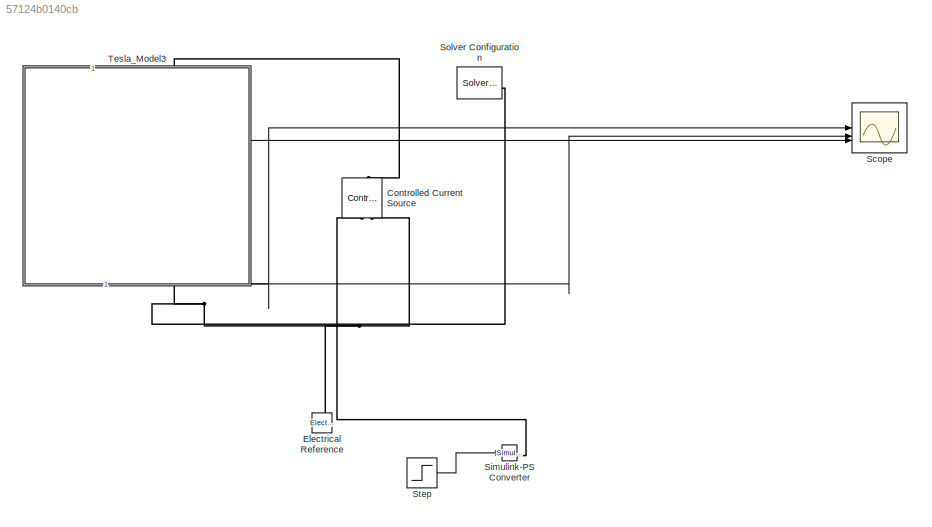
MODEL slx_57124b0140cb
KIND model
CONFIG AbsTol = auto
CONFIG EnableMultiTasking = off
CONFIG FixedStep = auto
CONFIG MaxStep = auto
CONFIG MinStep = auto
CONFIG RelTol = 1e-3
CONFIG SampleTimeConstraint = Unconstrained
CONFIG SolverName = VariableStepAuto
CONFIG StartTime = 0.0
CONFIG StopTime = 1200
BLOCK [Reference] Controlled Current Source  REF=fl_lib/Electrical/Electrical Sources/Controlled Current
Source
  NameLocation = right
  SourceBlock = fl_lib/Electrical/Electrical Sources/Controlled Current\nSource
  SourceType = Controlled Current\nSource
BLOCK [Reference] Electrical Reference  REF=fl_lib/Electrical/Electrical Elements/Electrical Reference
  NameLocation = right
  SourceBlock = fl_lib/Electrical/Electrical Elements/Electrical Reference
  SourceType = Electrical Reference
BLOCK [Scope] Scope
  ActiveDisplayYMaximum = 5.2166927086191768
  ActiveDisplayYMinimum = -4.890394675890005
  Floating = off
  GraphicalSettings = {"AxesScalingProperties":{"AlignXAxis":"Center","AlignYAxis":"Center","AutoScaleXAxisLimits":false,"AxesScaling":"Manual","AxesScalingNumUpdates":10,"ExpandOnly":true,"ScaleAxesLimitsAtStop":false,"XAxisDataRange":100,"YAxisDataRange":80},"DisplayProperties":{"ColorOrder":["auto","auto","auto","auto","auto","auto","auto","auto","auto","auto","auto","auto","auto","auto","auto","auto","auto","auto",...<+2320ch>
  MultipleDisplayCache = [{"MaxYLimMag":1.2031611983883417,"MaxYLimReal":5.2166927086191768,"MinYLimMag":0.75800658344392424,"MinYLimReal":-4.890394675890005,"PlotAsMagnitudePhase":false,"ShowGrid":true,"ShowLegend":true,"Title":"%<SignalLabel>","YLabel":""}]
  NumInputPorts = 3
  ScopeFrameLocation = window
  ShowLegend = on
  WasSavedAsWebScope = on
  WindowPosition = [61.000000,273.000000,762.000000,386.000000,]
BLOCK [Reference] Simulink-PS Converter  REF=nesl_utility/Simulink-PS
Converter
  SourceBlock = nesl_utility/Simulink-PS\nConverter
  SourceType = Simulink-PS\nConverter
BLOCK [Reference] Solver Configuration  REF=nesl_utility/Solver
Configuration
  SourceBlock = nesl_utility/Solver\nConfiguration
  SourceType = Solver\nConfiguration
BLOCK [Step] Step
  After = -200
  SampleTime = 0
  Time = 10
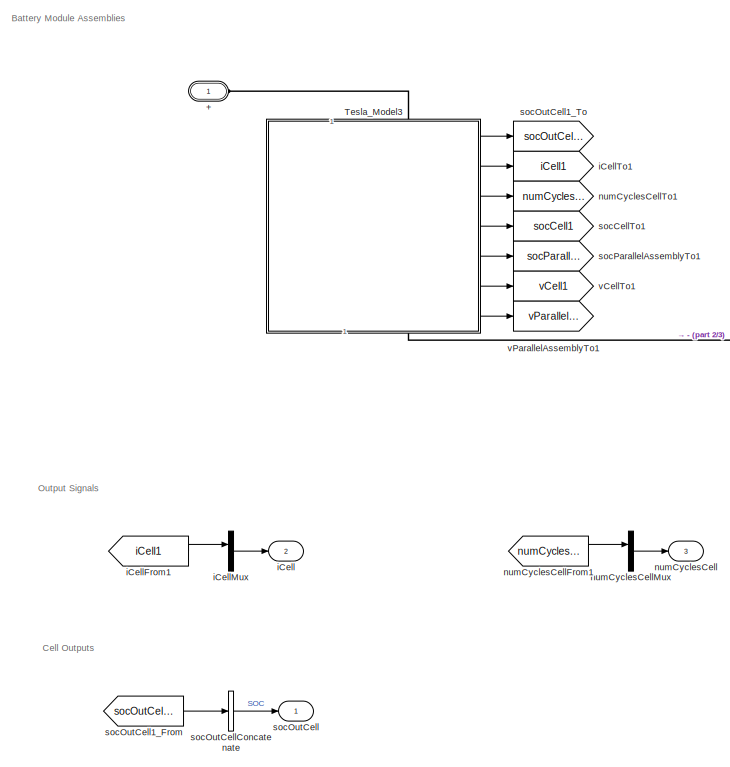
[diagram: Tesla_Model3 - part 1/3, left side, full height]
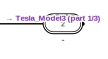
[diagram: Tesla_Model3 - part 2/3, top right region]
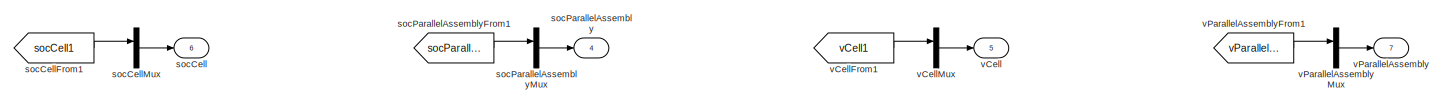
[diagram: Tesla_Model3 - part 3/3, bottom right region]
BLOCK [SubSystem] Tesla_Model3
  CopyFcn = battery_builder_rtmsupport('copyfcn',gcbh);
  LoadFcn = battery_builder_rtmsupport('loadfcn',gcbh);
  PortSchema = {"entries":[{"content":{"sides":[{"content":{"connectorIds":["LConn1"]},"type":"ConnectorPlacement.EquallySpacedRectSide","uuid":"f4af4d11-4926-44c4-af59-311caea6cabd"},{"content":{"connectorIds":["RConn1"],"side":"RIGHT"},"type":"ConnectorPlacement.EquallySpacedRectSide","uuid":"c841043f-6c5b-4fcc-b172-6d8728c652f5"},{"content":{"side":"TOP"},"type":"ConnectorPlacement.EquallySpacedRectSide","uui...<+419ch>
  PreCopyFcn = battery_builder_rtmsupport('precopyfcn',gcbh);
  PreDeleteFcn = battery_builder_rtmsupport('predeletefcn',gcbh);
BLOCK [PMIOPort] Tesla_Model3/+
  Side = Left
BLOCK [PMIOPort] Tesla_Model3/-
  Port = 2
  Side = Right
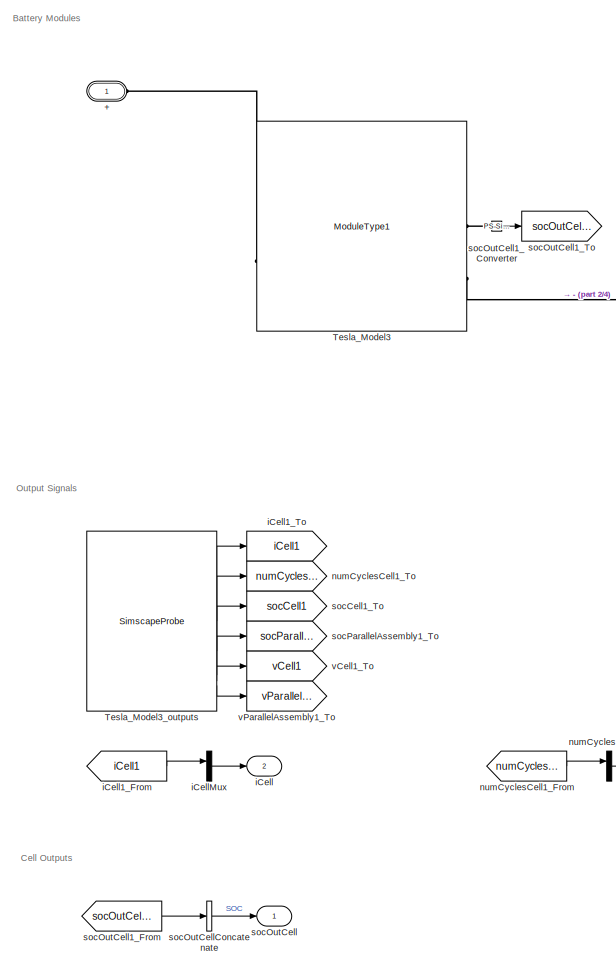
[diagram: Tesla_Model3/Tesla_Model3 - part 1/4, left side, full height]
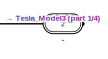
[diagram: Tesla_Model3/Tesla_Model3 - part 2/4, top right region]
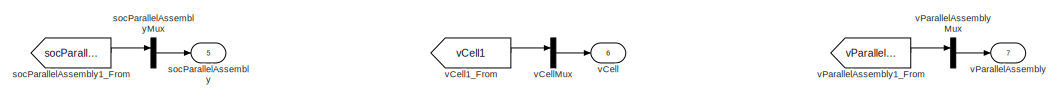
[diagram: Tesla_Model3/Tesla_Model3 - part 3/4, bottom right region]
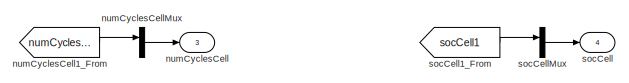
[diagram: Tesla_Model3/Tesla_Model3 - part 4/4, bottom center region]
BLOCK [SubSystem] Tesla_Model3/Tesla_Model3
  CopyFcn = battery_builder_rtmsupport('copyfcn',gcbh);
  LoadFcn = battery_builder_rtmsupport('loadfcn',gcbh);
  PortSchema = {"entries":[{"content":{"sides":[{"content":{"connectorIds":["LConn1"]},"type":"ConnectorPlacement.EquallySpacedRectSide","uuid":"f4af4d11-4926-44c4-af59-311caea6cabd"},{"content":{"connectorIds":["RConn1"],"side":"RIGHT"},"type":"ConnectorPlacement.EquallySpacedRectSide","uuid":"c841043f-6c5b-4fcc-b172-6d8728c652f5"},{"content":{"side":"TOP"},"type":"ConnectorPlacement.EquallySpacedRectSide","uui...<+419ch>
  PreCopyFcn = battery_builder_rtmsupport('precopyfcn',gcbh);
  PreDeleteFcn = battery_builder_rtmsupport('predeletefcn',gcbh);
BLOCK [PMIOPort] Tesla_Model3/Tesla_Model3/+
  Side = Left
BLOCK [PMIOPort] Tesla_Model3/Tesla_Model3/-
  Port = 2
  Side = Right
BLOCK [Reference] Tesla_Model3/Tesla_Model3/Tesla_Model3  REF=Batteries_lib/Modules/ModuleType1
  SourceBlock = Batteries_lib/Modules/ModuleType1
  SourceType = ModuleType1
BLOCK [SimscapeProbe] Tesla_Model3/Tesla_Model3/Tesla_Model3_outputs
  BoundBlock = 3
  Variables = {"iCell":{"Probing":"ON"},"numCyclesCell":{"Probing":"ON"},"socCell":{"Probing":"ON"},"socParallelAssembly":{"Probing":"ON"},"vCell":{"Probing":"ON"},"vParallelAssembly":{"Probing":"ON"}}
BLOCK [Outport] Tesla_Model3/Tesla_Model3/iCell
  Port = 2
BLOCK [From] Tesla_Model3/Tesla_Model3/iCell1_From
  GotoTag = iCell1
BLOCK [Goto] Tesla_Model3/Tesla_Model3/iCell1_To
  GotoTag = iCell1
BLOCK [Mux] Tesla_Model3/Tesla_Model3/iCellMux
  DisplayOption = bar
  Inputs = 1
BLOCK [Outport] Tesla_Model3/Tesla_Model3/numCyclesCell
  Port = 3
BLOCK [From] Tesla_Model3/Tesla_Model3/numCyclesCell1_From
  GotoTag = numCyclesCell1
BLOCK [Goto] Tesla_Model3/Tesla_Model3/numCyclesCell1_To
  GotoTag = numCyclesCell1
BLOCK [Mux] Tesla_Model3/Tesla_Model3/numCyclesCellMux
  DisplayOption = bar
  Inputs = 1
BLOCK [Outport] Tesla_Model3/Tesla_Model3/socCell
  Port = 4
BLOCK [From] Tesla_Model3/Tesla_Model3/socCell1_From
  GotoTag = socCell1
BLOCK [Goto] Tesla_Model3/Tesla_Model3/socCell1_To
  GotoTag = socCell1
BLOCK [Mux] Tesla_Model3/Tesla_Model3/socCellMux
  DisplayOption = bar
  Inputs = 1
BLOCK [Outport] Tesla_Model3/Tesla_Model3/socOutCell
  IconDisplay = Signal name
BLOCK [Reference] Tesla_Model3/Tesla_Model3/socOutCell1_Converter  REF=nesl_utility/PS-Simulink
Converter
  SourceBlock = nesl_utility/PS-Simulink\nConverter
  SourceType = PS-Simulink\nConverter
BLOCK [From] Tesla_Model3/Tesla_Model3/socOutCell1_From
  GotoTag = socOutCell1
BLOCK [Goto] Tesla_Model3/Tesla_Model3/socOutCell1_To
  GotoTag = socOutCell1
BLOCK [Concatenate] Tesla_Model3/Tesla_Model3/socOutCellConcatenate
  ConcatenateDimension = 2
  Mode = Multidimensional array
  NumInputs = 1
BLOCK [Outport] Tesla_Model3/Tesla_Model3/socParallelAssembly
  Port = 5
BLOCK [From] Tesla_Model3/Tesla_Model3/socParallelAssembly1_From
  GotoTag = socParallelAssembly1
BLOCK [Goto] Tesla_Model3/Tesla_Model3/socParallelAssembly1_To
  GotoTag = socParallelAssembly1
BLOCK [Mux] Tesla_Model3/Tesla_Model3/socParallelAssemblyMux
  DisplayOption = bar
  Inputs = 1
BLOCK [Outport] Tesla_Model3/Tesla_Model3/vCell
  Port = 6
BLOCK [From] Tesla_Model3/Tesla_Model3/vCell1_From
  GotoTag = vCell1
BLOCK [Goto] Tesla_Model3/Tesla_Model3/vCell1_To
  GotoTag = vCell1
BLOCK [Mux] Tesla_Model3/Tesla_Model3/vCellMux
  DisplayOption = bar
  Inputs = 1
BLOCK [Outport] Tesla_Model3/Tesla_Model3/vParallelAssembly
  Port = 7
BLOCK [From] Tesla_Model3/Tesla_Model3/vParallelAssembly1_From
  GotoTag = vParallelAssembly1
BLOCK [Goto] Tesla_Model3/Tesla_Model3/vParallelAssembly1_To
  GotoTag = vParallelAssembly1
BLOCK [Mux] Tesla_Model3/Tesla_Model3/vParallelAssemblyMux
  DisplayOption = bar
  Inputs = 1
BLOCK [Outport] Tesla_Model3/iCell
  Port = 2
BLOCK [From] Tesla_Model3/iCellFrom1
  GotoTag = iCell1
BLOCK [Mux] Tesla_Model3/iCellMux
  DisplayOption = bar
  Inputs = 1
BLOCK [Goto] Tesla_Model3/iCellTo1
  GotoTag = iCell1
BLOCK [Outport] Tesla_Model3/numCyclesCell
  Port = 3
BLOCK [From] Tesla_Model3/numCyclesCellFrom1
  GotoTag = numCyclesCell1
BLOCK [Mux] Tesla_Model3/numCyclesCellMux
  DisplayOption = bar
  Inputs = 1
BLOCK [Goto] Tesla_Model3/numCyclesCellTo1
  GotoTag = numCyclesCell1
BLOCK [Outport] Tesla_Model3/socCell
  Port = 6
BLOCK [From] Tesla_Model3/socCellFrom1
  GotoTag = socCell1
BLOCK [Mux] Tesla_Model3/socCellMux
  DisplayOption = bar
  Inputs = 1
BLOCK [Goto] Tesla_Model3/socCellTo1
  GotoTag = socCell1
BLOCK [Outport] Tesla_Model3/socOutCell
  IconDisplay = Signal name
BLOCK [From] Tesla_Model3/socOutCell1_From
  GotoTag = socOutCell1
BLOCK [Goto] Tesla_Model3/socOutCell1_To
  GotoTag = socOutCell1
BLOCK [Concatenate] Tesla_Model3/socOutCellConcatenate
  ConcatenateDimension = 2
  Mode = Multidimensional array
  NumInputs = 1
BLOCK [Outport] Tesla_Model3/socParallelAssembly
  Port = 4
BLOCK [From] Tesla_Model3/socParallelAssemblyFrom1
  GotoTag = socParallelAssembly1
BLOCK [Mux] Tesla_Model3/socParallelAssemblyMux
  DisplayOption = bar
  Inputs = 1
BLOCK [Goto] Tesla_Model3/socParallelAssemblyTo1
  GotoTag = socParallelAssembly1
BLOCK [Outport] Tesla_Model3/vCell
  Port = 5
BLOCK [From] Tesla_Model3/vCellFrom1
  GotoTag = vCell1
BLOCK [Mux] Tesla_Model3/vCellMux
  DisplayOption = bar
  Inputs = 1
BLOCK [Goto] Tesla_Model3/vCellTo1
  GotoTag = vCell1
BLOCK [Outport] Tesla_Model3/vParallelAssembly
  Port = 7
BLOCK [From] Tesla_Model3/vParallelAssemblyFrom1
  GotoTag = vParallelAssembly1
BLOCK [Mux] Tesla_Model3/vParallelAssemblyMux
  DisplayOption = bar
  Inputs = 1
BLOCK [Goto] Tesla_Model3/vParallelAssemblyTo1
  GotoTag = vParallelAssembly1
ANNOTATION Tesla_Model3: Battery Module Assemblies
ANNOTATION Tesla_Model3: Cell Outputs
ANNOTATION Tesla_Model3: Output Signals
ANNOTATION Tesla_Model3/Tesla_Model3: Battery Modules
ANNOTATION Tesla_Model3/Tesla_Model3: Cell Outputs
ANNOTATION Tesla_Model3/Tesla_Model3: Output Signals
LINE Step:1 -> Simulink-PS Converter:1
LINE Tesla_Model3/Tesla_Model3/Tesla_Model3_outputs:1 -> Tesla_Model3/Tesla_Model3/iCell1_To:1
LINE Tesla_Model3/Tesla_Model3/Tesla_Model3_outputs:2 -> Tesla_Model3/Tesla_Model3/numCyclesCell1_To:1
LINE Tesla_Model3/Tesla_Model3/Tesla_Model3_outputs:3 -> Tesla_Model3/Tesla_Model3/socCell1_To:1
LINE Tesla_Model3/Tesla_Model3/Tesla_Model3_outputs:4 -> Tesla_Model3/Tesla_Model3/socParallelAssembly1_To:1
LINE Tesla_Model3/Tesla_Model3/Tesla_Model3_outputs:5 -> Tesla_Model3/Tesla_Model3/vCell1_To:1
LINE Tesla_Model3/Tesla_Model3/Tesla_Model3_outputs:6 -> Tesla_Model3/Tesla_Model3/vParallelAssembly1_To:1
LINE Tesla_Model3/Tesla_Model3/iCell1_From:1 -> Tesla_Model3/Tesla_Model3/iCellMux:1
LINE Tesla_Model3/Tesla_Model3/iCellMux:1 -> Tesla_Model3/Tesla_Model3/iCell:1
LINE Tesla_Model3/Tesla_Model3/numCyclesCell1_From:1 -> Tesla_Model3/Tesla_Model3/numCyclesCellMux:1
LINE Tesla_Model3/Tesla_Model3/numCyclesCellMux:1 -> Tesla_Model3/Tesla_Model3/numCyclesCell:1
LINE Tesla_Model3/Tesla_Model3/socCell1_From:1 -> Tesla_Model3/Tesla_Model3/socCellMux:1
LINE Tesla_Model3/Tesla_Model3/socCellMux:1 -> Tesla_Model3/Tesla_Model3/socCell:1
LINE Tesla_Model3/Tesla_Model3/socOutCell1_Converter:1 -> Tesla_Model3/Tesla_Model3/socOutCell1_To:1
LINE Tesla_Model3/Tesla_Model3/socOutCell1_From:1 -> Tesla_Model3/Tesla_Model3/socOutCellConcatenate:1
LINE Tesla_Model3/Tesla_Model3/socOutCellConcatenate:1 -> Tesla_Model3/Tesla_Model3/socOutCell:1
LINE Tesla_Model3/Tesla_Model3/socParallelAssembly1_From:1 -> Tesla_Model3/Tesla_Model3/socParallelAssemblyMux:1
LINE Tesla_Model3/Tesla_Model3/socParallelAssemblyMux:1 -> Tesla_Model3/Tesla_Model3/socParallelAssembly:1
LINE Tesla_Model3/Tesla_Model3/vCell1_From:1 -> Tesla_Model3/Tesla_Model3/vCellMux:1
LINE Tesla_Model3/Tesla_Model3/vCellMux:1 -> Tesla_Model3/Tesla_Model3/vCell:1
LINE Tesla_Model3/Tesla_Model3/vParallelAssembly1_From:1 -> Tesla_Model3/Tesla_Model3/vParallelAssemblyMux:1
LINE Tesla_Model3/Tesla_Model3/vParallelAssemblyMux:1 -> Tesla_Model3/Tesla_Model3/vParallelAssembly:1
LINE Tesla_Model3/Tesla_Model3:1 -> Tesla_Model3/socOutCell1_To:1
LINE Tesla_Model3/Tesla_Model3:2 -> Tesla_Model3/iCellTo1:1
LINE Tesla_Model3/Tesla_Model3:3 -> Tesla_Model3/numCyclesCellTo1:1
LINE Tesla_Model3/Tesla_Model3:4 -> Tesla_Model3/socCellTo1:1
LINE Tesla_Model3/Tesla_Model3:5 -> Tesla_Model3/socParallelAssemblyTo1:1
LINE Tesla_Model3/Tesla_Model3:6 -> Tesla_Model3/vCellTo1:1
LINE Tesla_Model3/Tesla_Model3:7 -> Tesla_Model3/vParallelAssemblyTo1:1
LINE Tesla_Model3/iCellFrom1:1 -> Tesla_Model3/iCellMux:1
LINE Tesla_Model3/iCellMux:1 -> Tesla_Model3/iCell:1
LINE Tesla_Model3/numCyclesCellFrom1:1 -> Tesla_Model3/numCyclesCellMux:1
LINE Tesla_Model3/numCyclesCellMux:1 -> Tesla_Model3/numCyclesCell:1
LINE Tesla_Model3/socCellFrom1:1 -> Tesla_Model3/socCellMux:1
LINE Tesla_Model3/socCellMux:1 -> Tesla_Model3/socCell:1
LINE Tesla_Model3/socOutCell1_From:1 -> Tesla_Model3/socOutCellConcatenate:1
LINE Tesla_Model3/socOutCellConcatenate:1 -> Tesla_Model3/socOutCell:1
LINE Tesla_Model3/socParallelAssemblyFrom1:1 -> Tesla_Model3/socParallelAssemblyMux:1
LINE Tesla_Model3/socParallelAssemblyMux:1 -> Tesla_Model3/socParallelAssembly:1
LINE Tesla_Model3/vCellFrom1:1 -> Tesla_Model3/vCellMux:1
LINE Tesla_Model3/vCellMux:1 -> Tesla_Model3/vCell:1
LINE Tesla_Model3/vParallelAssemblyFrom1:1 -> Tesla_Model3/vParallelAssemblyMux:1
LINE Tesla_Model3/vParallelAssemblyMux:1 -> Tesla_Model3/vParallelAssembly:1
LINE Tesla_Model3:1 -> Scope:1
LINE Tesla_Model3:2 -> Scope:2
LINE Tesla_Model3:5 -> Scope:3
PLINE Controlled Current Source:LConn1 -- Tesla_Model3:LConn1
PLINE Controlled Current Source:RConn1 -- Simulink-PS Converter:RConn1
PNET net1: Controlled Current Source:RConn2 -- Electrical Reference:LConn1 -- Solver Configuration:RConn1 -- Tesla_Model3:RConn1
PLINE Tesla_Model3/+:RConn1 -- Tesla_Model3/Tesla_Model3:LConn1
PLINE Tesla_Model3/-:RConn1 -- Tesla_Model3/Tesla_Model3:RConn1
PLINE Tesla_Model3/Tesla_Model3/+:RConn1 -- Tesla_Model3/Tesla_Model3/Tesla_Model3:LConn1
PLINE Tesla_Model3/Tesla_Model3/-:RConn1 -- Tesla_Model3/Tesla_Model3/Tesla_Model3:RConn2
PLINE Tesla_Model3/Tesla_Model3/Tesla_Model3:RConn1 -- Tesla_Model3/Tesla_Model3/socOutCell1_Converter:LConn1
note: PNET lines group multi-terminal physical nets as a canonical sorted terminal list (undirected conserving connections); 2-terminal nets keep the pairwise PLINE form
